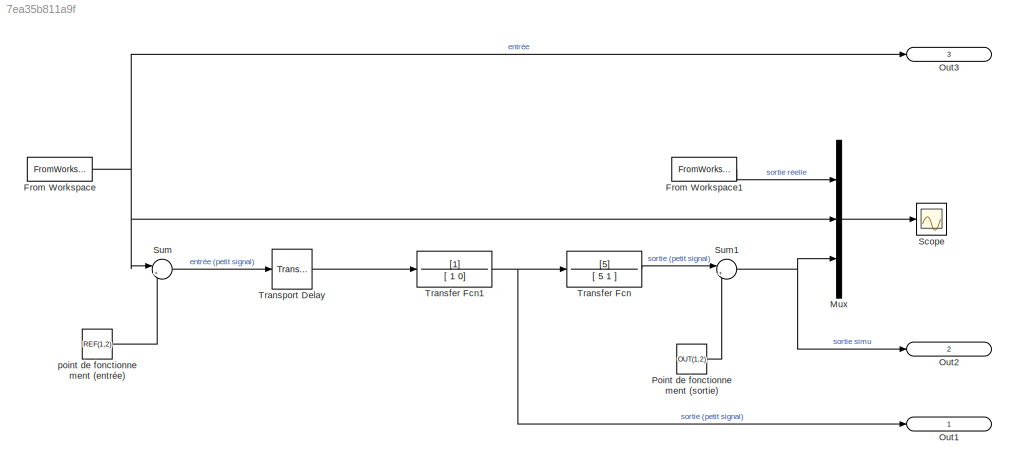
MODEL slx_7ea35b811a9f
KIND model
CONFIG AbsTol = auto
CONFIG EnableMultiTasking = off
CONFIG FixedStep = auto
CONFIG MaxStep = auto
CONFIG MinStep = auto
CONFIG RelTol = 1e-3
CONFIG SampleTimeConstraint = Unconstrained
CONFIG SolverName = VariableStepAuto
CONFIG StartTime = 0.0
CONFIG StopTime = 11.25
BLOCK [FromWorkspace] From Workspace
  VariableName = COM
BLOCK [FromWorkspace] From Workspace1
  VariableName = OUT
BLOCK [Mux] Mux
  DisplayOption = bar
  Inputs = 3
BLOCK [Outport] Out1
  IconDisplay = Signal name
  SignalName = step_input
BLOCK [Outport] Out2
  IconDisplay = Signal name
  Port = 2
  SignalName = simu_output
BLOCK [Outport] Out3
  IconDisplay = Signal name
  Port = 3
  SignalName = Input
BLOCK [Constant] Point de fonctionnement (sortie)
  Value = OUT(1,2)
BLOCK [Scope] Scope
  Floating = off
  NumInputPorts = 1
  ScopeSpecificationString = Simulink.scopes.TimeScopeBlockCfg('CurrentConfiguration', extmgr.ConfigurationSet(extmgr.Configuration('Core','General UI',true,'FigureColor',[0.941176470588235 0.941176470588235 0.941176470588235]),extmgr.Configuration('Core','Source UI',true),extmgr.Configuration('Sources','WiredSimulink',true),extmgr.Configuration('Visuals','Time Domain',true,'SerializedDisplays',{struct('MinYLimReal','-7.04265...<+2156ch>
BLOCK [Sum] Sum
  Inputs = |+-
  NameLocation = top
BLOCK [Sum] Sum1
  Inputs = |++
BLOCK [TransferFcn] Transfer Fcn
  Denominator = [ 5 1 ]
  Numerator = [5]
BLOCK [TransferFcn] Transfer Fcn1
  Denominator = [ 1  0]
BLOCK [TransportDelay] Transport Delay
  DelayTime = 2
BLOCK [Constant] point de fonctionnement (entrée)
  Value = REF(1,2)
LINE From Workspace1:1 -> Mux:1
NET From Workspace:1 -> Mux:2, Out3:1, Sum:1
LINE Mux:1 -> Scope:1
LINE Point de fonctionnement (sortie):1 -> Sum1:2
NET Sum1:1 -> Mux:3, Out2:1
LINE Sum:1 -> Transport Delay:1
NET Transfer Fcn1:1 -> Out1:1, Transfer Fcn:1
LINE Transfer Fcn:1 -> Sum1:1
LINE Transport Delay:1 -> Transfer Fcn1:1
LINE point de fonctionnement (entrée):1 -> Sum:2
note: NET lines group one-source signal fan-out (src -> all destinations, sorted); 1:1 wires keep LINE
